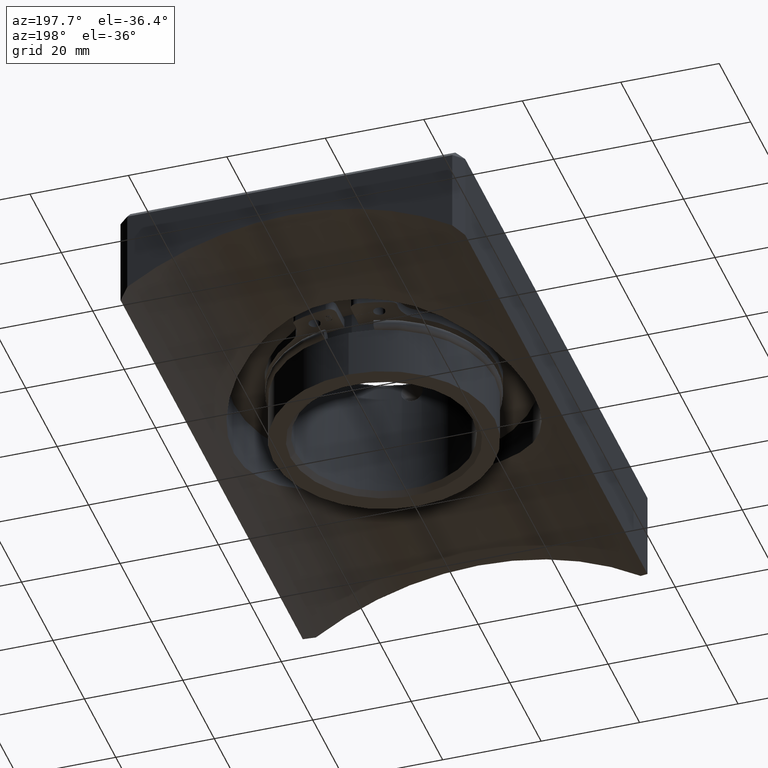
[diagram: clean part render]
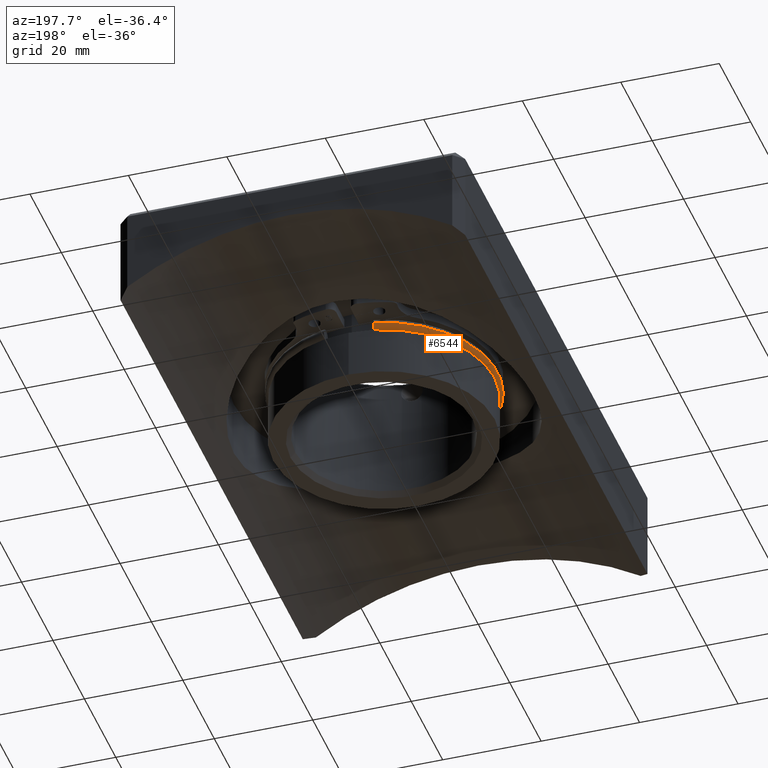
[diagram: same view with one face highlighted and labeled with its STEP entity id]
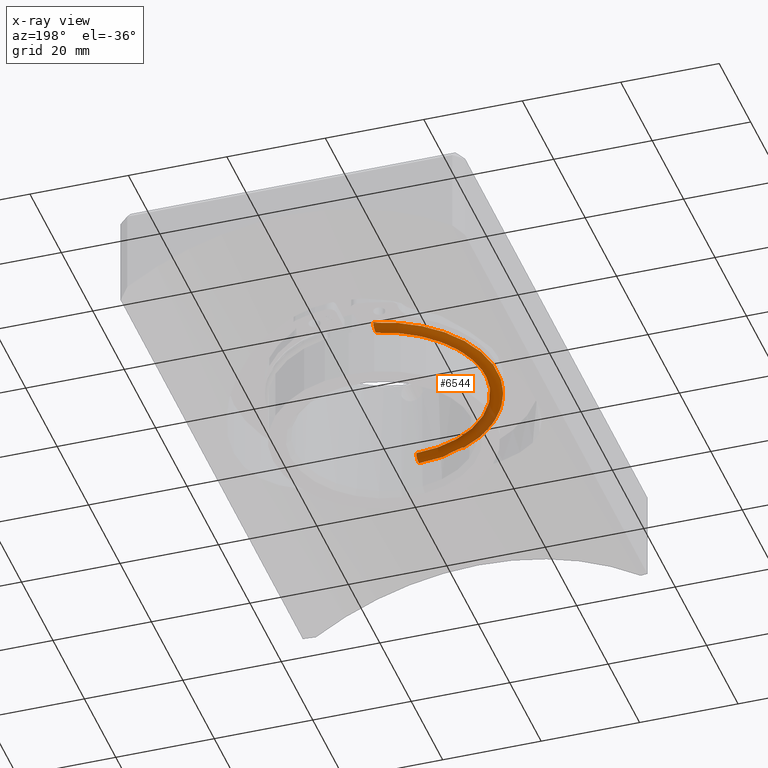
[diagram: x-ray of the same camera — body ghosted, the highlighted face saturated]
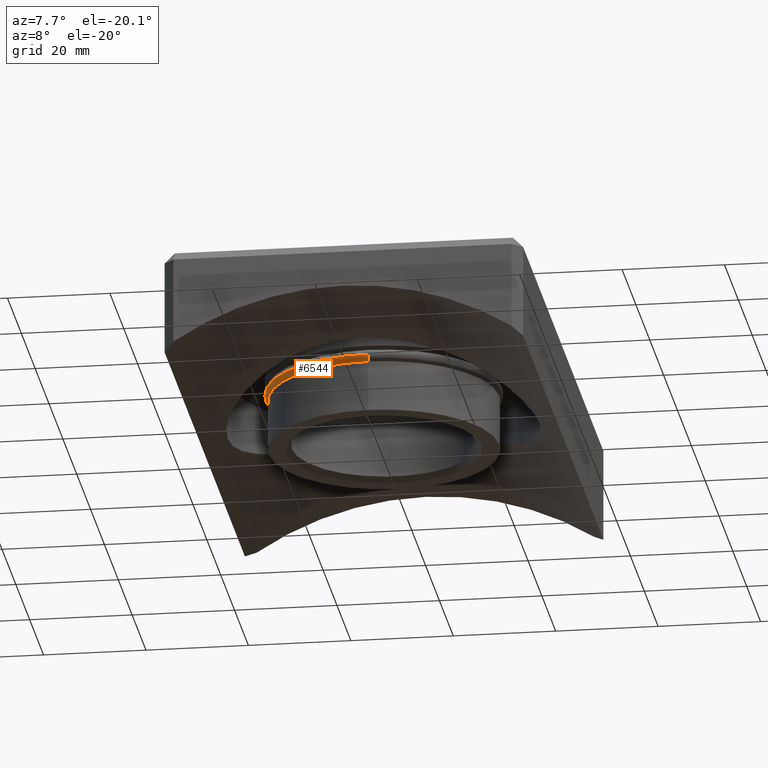
[diagram: same view with one face highlighted and labeled with its STEP entity id]
A machine part, auxiliary view. The second image highlights one B-rep face of the part: STEP entity #6544.
The next image is the same camera in x-ray: the body ghosted, the highlighted face saturated — about 11% of this face is hidden behind the body in this view.
A second angle (auxiliary view) of the same face is appended — the face is thin or edge-on in the first view.
In plain terms, the highlighted toroidal blend (fillet) surface has major radius 21.8 mm and minor (blend) radius 1.25 mm.
Its self-contained STEP definition (entity closure, byte-faithful):
#313 = CARTESIAN_POINT ( 'NONE',  ( -4.999999999999999112, 22.36879662716377482, -2.759554609673628089 ) ) ;
#927 = CARTESIAN_POINT ( 'NONE',  ( 0.000000000000000000, -23.05000000000001847, -2.199999999999990852 ) ) ;
#1629 = DIRECTION ( 'NONE',  ( -1.000000000000000000, -0.000000000000000000, 0.000000000000000000 ) ) ;
#1812 = CARTESIAN_POINT ( 'NONE',  ( -5.000000000000000000, 22.17996943898165085, -3.031927187615450769 ) ) ;
#1871 = CARTESIAN_POINT ( 'NONE',  ( -4.999999999999999112, 21.88056909552484797, -3.320205799110568901 ) ) ;
#2839 = CIRCLE ( 'NONE', #13527, 20.55000000000000782 ) ;
#2934 = EDGE_CURVE ( 'NONE', #14247, #17817, #15650, .T. ) ;
#3172 = CARTESIAN_POINT ( 'NONE',  ( 0.000000000000000000, -21.80000000000001847, -2.199999999999990852 ) ) ;
#3231 = CARTESIAN_POINT ( 'NONE',  ( -5.000000000000000000, 20.09954189370263933, -2.837750158780500964 ) ) ;
#3557 = VERTEX_POINT ( 'NONE', #927 ) ;
#4536 = CARTESIAN_POINT ( 'NONE',  ( -5.000000000000000000, 20.57888964568303791, -3.295998009599163669 ) ) ;
#4910 = CARTESIAN_POINT ( 'NONE',  ( 0.000000000000000000, -6.938893903907228378E-15, -2.199999999999993516 ) ) ;
#5003 = CARTESIAN_POINT ( 'NONE',  ( -5.000000000000000000, 19.93244841959933211, -2.200000000000005951 ) ) ;
#5007 = DIRECTION ( 'NONE',  ( 0.000000000000000000, -1.000000000000000000, 1.317035176988898380E-16 ) ) ;
#5977 = CARTESIAN_POINT ( 'NONE',  ( -5.000000000000000000, 22.50116663642132409, -2.199999999999996625 ) ) ;
#6544 = ADVANCED_FACE ( 'NONE', ( #16204 ), #6551, .T. ) ;
#6551 = TOROIDAL_SURFACE ( 'NONE', #7445, 21.80000000000001137, 1.250000000000001332 ) ;
#6681 = EDGE_LOOP ( 'NONE', ( #17394, #11139, #13702, #16617 ) ) ;
#7425 = CARTESIAN_POINT ( 'NONE',  ( -5.000000000000000000, 19.97485624789279512, -2.528568989803746891 ) ) ;
#7445 = AXIS2_PLACEMENT_3D ( 'NONE', #16720, #10940, #12277 ) ;
#7489 = CARTESIAN_POINT ( 'NONE',  ( -4.999999999999999112, 20.43597044491610859, -3.204689873458875571 ) ) ;
#7540 = DIRECTION ( 'NONE',  ( -0.000000000000000000, 1.284980352575412946E-16, 1.000000000000000000 ) ) ;
#7719 = DIRECTION ( 'NONE',  ( 0.000000000000000000, -1.000000000000000000, 1.266221515311537557E-16 ) ) ;
#8247 = CIRCLE ( 'NONE', #14110, 1.250000000000001332 ) ;
#8857 = CARTESIAN_POINT ( 'NONE',  ( -5.000000000000000000, 21.55133450327068090, -3.450083854766691882 ) ) ;
#9131 = CARTESIAN_POINT ( 'NONE',  ( 0.000000000000000000, -6.938893903907228378E-15, -2.199999999999993516 ) ) ;
#10254 = CARTESIAN_POINT ( 'NONE',  ( 0.000000000000000000, -20.55000000000001492, -2.199999999999993516 ) ) ;
#10345 = CARTESIAN_POINT ( 'NONE',  ( -5.000000000000000000, 20.19736755882400203, -2.976507513031451335 ) ) ;
#10474 = CARTESIAN_POINT ( 'NONE',  ( -5.000000000000000000, 20.88676574058350255, -3.418284021777914017 ) ) ;
#10616 = EDGE_CURVE ( 'NONE', #17817, #3557, #10944, .T. ) ;
#10732 = EDGE_CURVE ( 'NONE', #12906, #3557, #8247, .T. ) ;
#10940 = DIRECTION ( 'NONE',  ( -0.000000000000000000, 1.284980352575412946E-16, 1.000000000000000000 ) ) ;
#10944 = CIRCLE ( 'NONE', #16131, 23.05000000000001137 ) ;
#11139 = ORIENTED_EDGE ( 'NONE', *, *, #2934, .F. ) ;
#11681 = CARTESIAN_POINT ( 'NONE',  ( -5.000000000000000000, 22.50116663642132409, -2.199999999999996625 ) ) ;
#11803 = CARTESIAN_POINT ( 'NONE',  ( -4.999999999999999112, 22.23347898350377960, -2.969145461128602559 ) ) ;
#12277 = DIRECTION ( 'NONE',  ( 0.000000000000000000, -1.000000000000000000, 1.284980352575412946E-16 ) ) ;
#12906 = VERTEX_POINT ( 'NONE', #10254 ) ;
#13132 = CARTESIAN_POINT ( 'NONE',  ( -5.000000000000000888, 19.99980012288661158, -2.607428579191831464 ) ) ;
#13196 = CARTESIAN_POINT ( 'NONE',  ( -5.000000000000000000, 22.32779015423390234, -2.833356657655281996 ) ) ;
#13202 = DIRECTION ( 'NONE',  ( 0.000000000000000000, 0.000000000000000000, 1.000000000000000000 ) ) ;
#13527 = AXIS2_PLACEMENT_3D ( 'NONE', #4910, #7540, #7719 ) ;
#13599 = DIRECTION ( 'NONE',  ( -0.000000000000000000, 1.284980352575412946E-16, 1.000000000000000000 ) ) ;
#13702 = ORIENTED_EDGE ( 'NONE', *, *, #14666, .T. ) ;
#14110 = AXIS2_PLACEMENT_3D ( 'NONE', #3172, #1629, #13202 ) ;
#14247 = VERTEX_POINT ( 'NONE', #5003 ) ;
#14583 = CARTESIAN_POINT ( 'NONE',  ( -4.999999999999999112, 22.46678830173902952, -2.531579632050231954 ) ) ;
#14666 = EDGE_CURVE ( 'NONE', #14247, #12906, #2839, .T. ) ;
#14699 = CARTESIAN_POINT ( 'NONE',  ( -4.999999999999999112, 19.93244841959962699, -2.282877835336145633 ) ) ;
#14764 = CARTESIAN_POINT ( 'NONE',  ( -5.000000000000000888, 21.05212314192521106, -3.449958009732078779 ) ) ;
#15650 = B_SPLINE_CURVE_WITH_KNOTS ( 'NONE', 3,
 ( #16139, #14699, #16068, #7425, #13132, #3231, #10345, #7489, #4536, #10474, #14764, #8857, #1871, #1812, #11803, #13196, #313, #14583, #16206, #5977 ),
 .UNSPECIFIED., .F., .F.,
 ( 4, 2, 2, 2, 2, 2, 2, 2, 2, 4 ),
 ( 0.007186255922462725897, 0.007433739514734196210, 0.007681223107005666524, 0.008176190291548608019, 0.008671157476091548647, 0.009166124660634491009, 0.01015605902972038441, 0.01040354262199185559, 0.01065102621426332677, 0.01114599339880627434 ),
 .UNSPECIFIED. ) ;
#16068 = CARTESIAN_POINT ( 'NONE',  ( -5.000000000000000000, 19.94114130811771801, -2.366787356958906852 ) ) ;
#16131 = AXIS2_PLACEMENT_3D ( 'NONE', #9131, #13599, #5007 ) ;
#16139 = CARTESIAN_POINT ( 'NONE',  ( -5.000000000000000000, 19.93244841959933211, -2.200000000000005951 ) ) ;
#16204 = FACE_OUTER_BOUND ( 'NONE', #6681, .T. ) ;
#16206 = CARTESIAN_POINT ( 'NONE',  ( -4.999999999999999112, 22.50116663642132764, -2.365060886123790507 ) ) ;
#16617 = ORIENTED_EDGE ( 'NONE', *, *, #10732, .T. ) ;
#16720 = CARTESIAN_POINT ( 'NONE',  ( 0.000000000000000000, -6.938893903907228378E-15, -2.199999999999993516 ) ) ;
#17394 = ORIENTED_EDGE ( 'NONE', *, *, #10616, .F. ) ;
#17817 = VERTEX_POINT ( 'NONE', #11681 ) ;